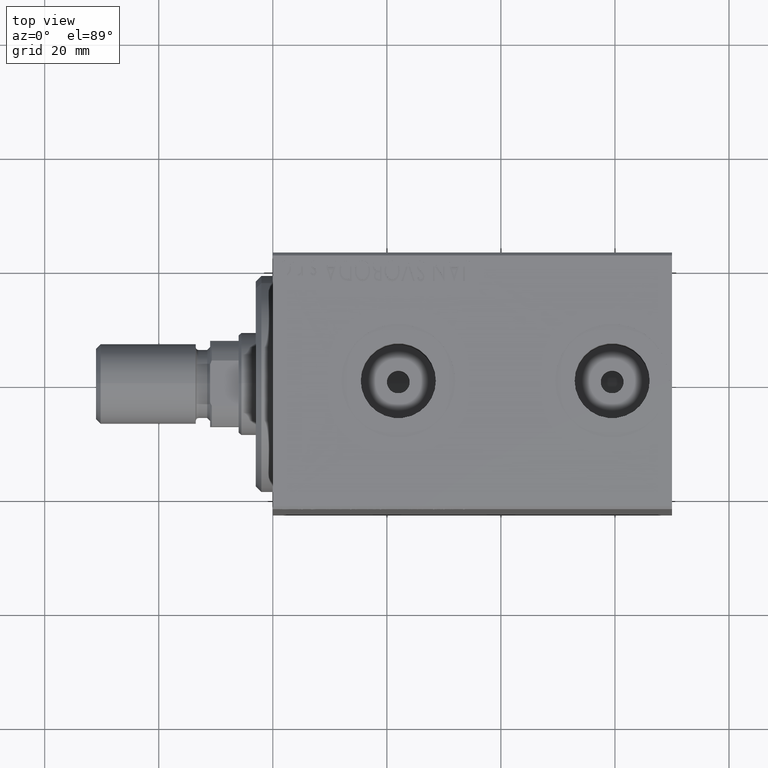
[diagram: clean part render]
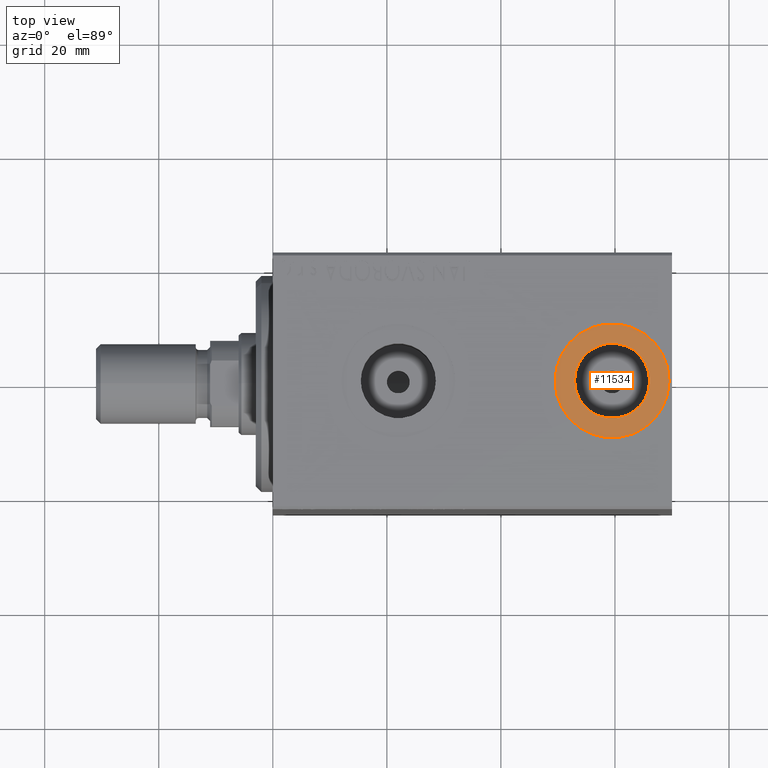
[diagram: same view with one face highlighted and labeled with its STEP entity id]
A machine part, top view. The second image highlights one B-rep face of the part: STEP entity #11534.
In plain terms, the highlighted planar face has unit normal (0, 0, 1).
Its self-contained STEP definition (entity closure, byte-faithful):
#1034 = DIRECTION ( 'NONE',  ( 0.000000000000000000, 0.000000000000000000, 1.000000000000000000 ) ) ;
#2841 = AXIS2_PLACEMENT_3D ( 'NONE', #43237, #36485, #15395 ) ;
#6031 = AXIS2_PLACEMENT_3D ( 'NONE', #15979, #11942, #22052 ) ;
#7501 = CARTESIAN_POINT ( 'NONE',  ( 69.50000000000000000, -5.011423375044109822E-15, 32.39999999999999858 ) ) ;
#8000 = CARTESIAN_POINT ( 'NONE',  ( 59.50000000000000711, -5.011423375044109822E-15, 32.39999999999999858 ) ) ;
#8790 = EDGE_CURVE ( 'NONE', #35878, #26047, #25092, .T. ) ;
#9767 = ORIENTED_EDGE ( 'NONE', *, *, #8790, .F. ) ;
#11258 = DIRECTION ( 'NONE',  ( 1.000000000000000000, 0.000000000000000000, 0.000000000000000000 ) ) ;
#11534 = ADVANCED_FACE ( 'NONE', ( #15359, #29063 ), #15583, .T. ) ;
#11942 = DIRECTION ( 'NONE',  ( 0.000000000000000000, 0.000000000000000000, 1.000000000000000000 ) ) ;
#12437 = ORIENTED_EDGE ( 'NONE', *, *, #24127, .T. ) ;
#14747 = DIRECTION ( 'NONE',  ( 1.000000000000000000, 0.000000000000000000, 0.000000000000000000 ) ) ;
#15359 = FACE_BOUND ( 'NONE', #24872, .T. ) ;
#15395 = DIRECTION ( 'NONE',  ( 1.000000000000000000, 0.000000000000000000, 0.000000000000000000 ) ) ;
#15583 = PLANE ( 'NONE',  #40836 ) ;
#15979 = CARTESIAN_POINT ( 'NONE',  ( 59.50000000000000711, -5.011423375044109822E-15, 32.39999999999999858 ) ) ;
#16849 = CARTESIAN_POINT ( 'NONE',  ( 49.50000000000000000, -3.786776575896756763E-15, 32.39999999999999858 ) ) ;
#19578 = AXIS2_PLACEMENT_3D ( 'NONE', #8000, #1034, #14747 ) ;
#20368 = CIRCLE ( 'NONE', #6031, 10.00000000000000178 ) ;
#22052 = DIRECTION ( 'NONE',  ( 1.000000000000000000, 0.000000000000000000, 0.000000000000000000 ) ) ;
#22453 = EDGE_LOOP ( 'NONE', ( #12437, #41654 ) ) ;
#23868 = CIRCLE ( 'NONE', #19578, 6.579999999999995630 ) ;
#23899 = CARTESIAN_POINT ( 'NONE',  ( 52.92000000000000881, -4.205605781205152358E-15, 32.39999999999999858 ) ) ;
#24127 = EDGE_CURVE ( 'NONE', #42677, #43931, #41703, .T. ) ;
#24872 = EDGE_LOOP ( 'NONE', ( #9767, #41336 ) ) ;
#25092 = CIRCLE ( 'NONE', #2841, 6.579999999999995630 ) ;
#26047 = VERTEX_POINT ( 'NONE', #23899 ) ;
#27343 = EDGE_CURVE ( 'NONE', #26047, #35878, #23868, .T. ) ;
#28341 = CARTESIAN_POINT ( 'NONE',  ( 59.50000000000000711, -5.011423375044109822E-15, 32.39999999999999858 ) ) ;
#29063 = FACE_OUTER_BOUND ( 'NONE', #22453, .T. ) ;
#29496 = DIRECTION ( 'NONE',  ( 0.000000000000000000, 0.000000000000000000, 1.000000000000000000 ) ) ;
#31545 = EDGE_CURVE ( 'NONE', #43931, #42677, #20368, .T. ) ;
#33103 = AXIS2_PLACEMENT_3D ( 'NONE', #28341, #42025, #11258 ) ;
#35878 = VERTEX_POINT ( 'NONE', #40470 ) ;
#36485 = DIRECTION ( 'NONE',  ( 0.000000000000000000, 0.000000000000000000, 1.000000000000000000 ) ) ;
#40470 = CARTESIAN_POINT ( 'NONE',  ( 66.07999999999999829, -5.011423375044109822E-15, 32.39999999999999858 ) ) ;
#40836 = AXIS2_PLACEMENT_3D ( 'NONE', #42753, #29496, #43205 ) ;
#41336 = ORIENTED_EDGE ( 'NONE', *, *, #27343, .F. ) ;
#41654 = ORIENTED_EDGE ( 'NONE', *, *, #31545, .T. ) ;
#41703 = CIRCLE ( 'NONE', #33103, 10.00000000000000178 ) ;
#42025 = DIRECTION ( 'NONE',  ( 0.000000000000000000, 0.000000000000000000, 1.000000000000000000 ) ) ;
#42677 = VERTEX_POINT ( 'NONE', #7501 ) ;
#42753 = CARTESIAN_POINT ( 'NONE',  ( 59.50000000000000711, -5.011423375044109822E-15, 32.39999999999999858 ) ) ;
#43205 = DIRECTION ( 'NONE',  ( 1.000000000000000000, 0.000000000000000000, -0.000000000000000000 ) ) ;
#43237 = CARTESIAN_POINT ( 'NONE',  ( 59.50000000000000711, -5.011423375044109822E-15, 32.39999999999999858 ) ) ;
#43931 = VERTEX_POINT ( 'NONE', #16849 ) ;